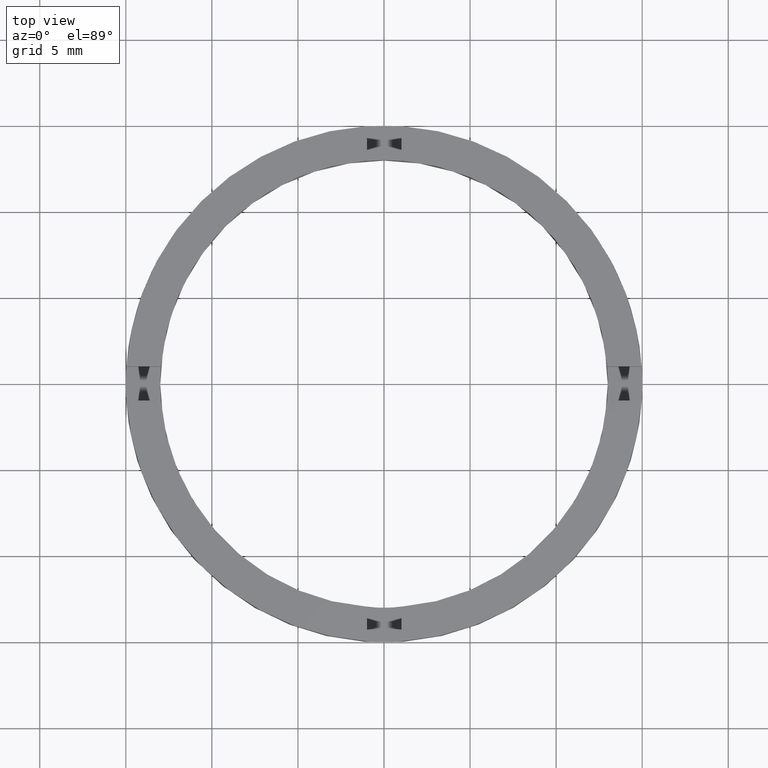
[diagram: clean part render]
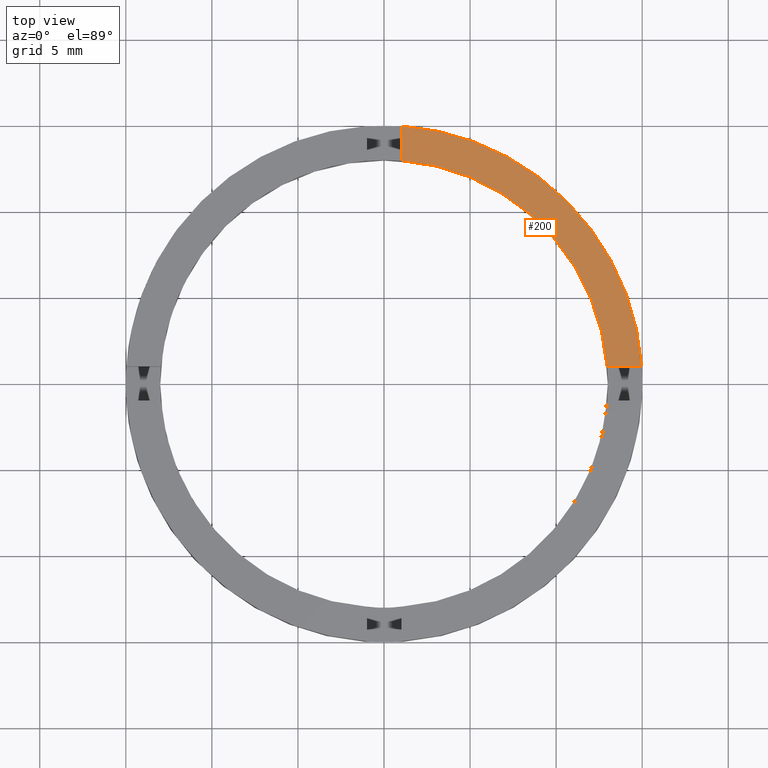
[diagram: same view with one face highlighted and labeled with its STEP entity id]
A machine part, top view. The second image highlights one B-rep face of the part: STEP entity #200.
In plain terms, the highlighted planar face has unit normal (0, 0, 1).
Its self-contained STEP definition (entity closure, byte-faithful):
#2 = VECTOR ( 'NONE', #232, 1000.000000000000000 ) ;
#40 = AXIS2_PLACEMENT_3D ( 'NONE', #75, #601, #269 ) ;
#66 = EDGE_CURVE ( 'NONE', #374, #244, #266, .T. ) ;
#75 = CARTESIAN_POINT ( 'NONE',  ( 0.000000000000000000, 0.000000000000000000, 2.500000000000000000 ) ) ;
#105 = EDGE_CURVE ( 'NONE', #627, #244, #132, .T. ) ;
#132 = CIRCLE ( 'NONE', #40, 15.00000000000000000 ) ;
#158 = FACE_OUTER_BOUND ( 'NONE', #742, .T. ) ;
#200 = ADVANCED_FACE ( 'NONE', ( #158 ), #560, .T. ) ;
#207 = CARTESIAN_POINT ( 'NONE',  ( 4.999999999999993783, 0.9999999999998402389, 2.500000000000000000 ) ) ;
#232 = DIRECTION ( 'NONE',  ( 0.000000000000000000, 1.000000000000000000, 0.000000000000000000 ) ) ;
#242 = ORIENTED_EDGE ( 'NONE', *, *, #309, .F. ) ;
#244 = VERTEX_POINT ( 'NONE', #634 ) ;
#266 = LINE ( 'NONE', #583, #2 ) ;
#269 = DIRECTION ( 'NONE',  ( 1.000000000000000000, 0.000000000000000000, 0.000000000000000000 ) ) ;
#309 = EDGE_CURVE ( 'NONE', #627, #448, #720, .T. ) ;
#314 = DIRECTION ( 'NONE',  ( -1.000000000000000000, -4.336808689942017736E-17, -0.000000000000000000 ) ) ;
#323 = AXIS2_PLACEMENT_3D ( 'NONE', #772, #372, #366 ) ;
#324 = EDGE_CURVE ( 'NONE', #448, #374, #436, .T. ) ;
#366 = DIRECTION ( 'NONE',  ( 1.000000000000000000, 0.000000000000000000, 0.000000000000000000 ) ) ;
#372 = DIRECTION ( 'NONE',  ( 0.000000000000000000, 0.000000000000000000, 1.000000000000000000 ) ) ;
#374 = VERTEX_POINT ( 'NONE', #782 ) ;
#409 = ORIENTED_EDGE ( 'NONE', *, *, #66, .F. ) ;
#436 = CIRCLE ( 'NONE', #323, 13.00000000000000178 ) ;
#448 = VERTEX_POINT ( 'NONE', #589 ) ;
#458 = CARTESIAN_POINT ( 'NONE',  ( 0.000000000000000000, 0.000000000000000000, 2.500000000000000000 ) ) ;
#478 = VECTOR ( 'NONE', #314, 1000.000000000000000 ) ;
#496 = ORIENTED_EDGE ( 'NONE', *, *, #105, .T. ) ;
#560 = PLANE ( 'NONE',  #594 ) ;
#571 = DIRECTION ( 'NONE',  ( 0.000000000000000000, 0.000000000000000000, 1.000000000000000000 ) ) ;
#583 = CARTESIAN_POINT ( 'NONE',  ( 0.9999999999999751310, 4.999999999999999112, 2.500000000000000000 ) ) ;
#589 = CARTESIAN_POINT ( 'NONE',  ( 12.96148139681573497, 0.9999999999998406830, 2.500000000000000000 ) ) ;
#594 = AXIS2_PLACEMENT_3D ( 'NONE', #458, #571, #749 ) ;
#601 = DIRECTION ( 'NONE',  ( 0.000000000000000000, 0.000000000000000000, 1.000000000000000000 ) ) ;
#627 = VERTEX_POINT ( 'NONE', #673 ) ;
#634 = CARTESIAN_POINT ( 'NONE',  ( 0.9999999999999751310, 14.96662954709576709, 2.500000000000000000 ) ) ;
#673 = CARTESIAN_POINT ( 'NONE',  ( 14.96662954709577775, 0.9999999999998406830, 2.500000000000000000 ) ) ;
#700 = ORIENTED_EDGE ( 'NONE', *, *, #324, .F. ) ;
#720 = LINE ( 'NONE', #207, #478 ) ;
#742 = EDGE_LOOP ( 'NONE', ( #409, #700, #242, #496 ) ) ;
#749 = DIRECTION ( 'NONE',  ( 1.000000000000000000, 0.000000000000000000, -0.000000000000000000 ) ) ;
#772 = CARTESIAN_POINT ( 'NONE',  ( 0.000000000000000000, 0.000000000000000000, 2.500000000000000000 ) ) ;
#782 = CARTESIAN_POINT ( 'NONE',  ( 0.9999999999999751310, 12.96148139681572431, 2.500000000000000000 ) ) ;